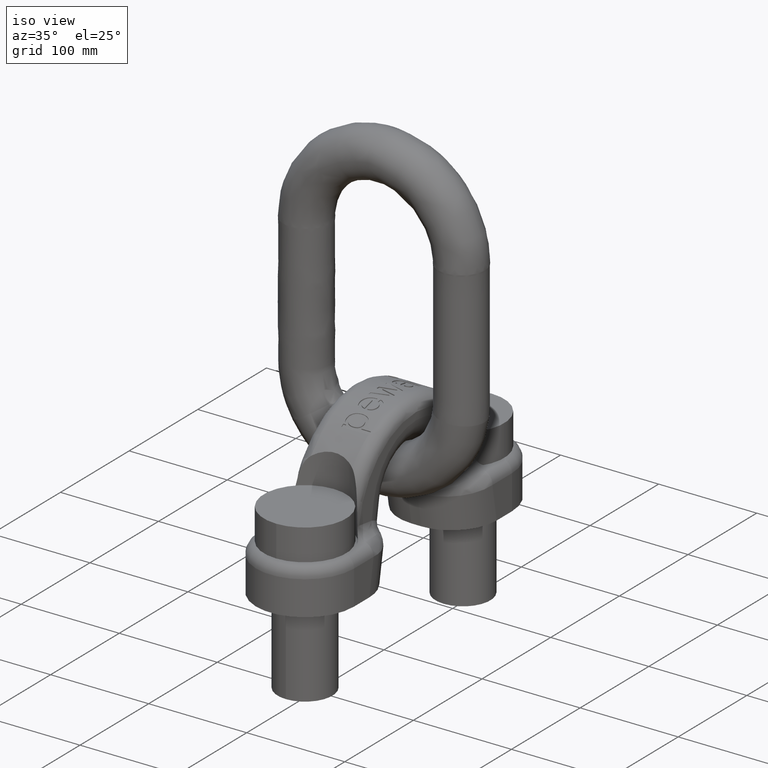
[diagram: clean part render]
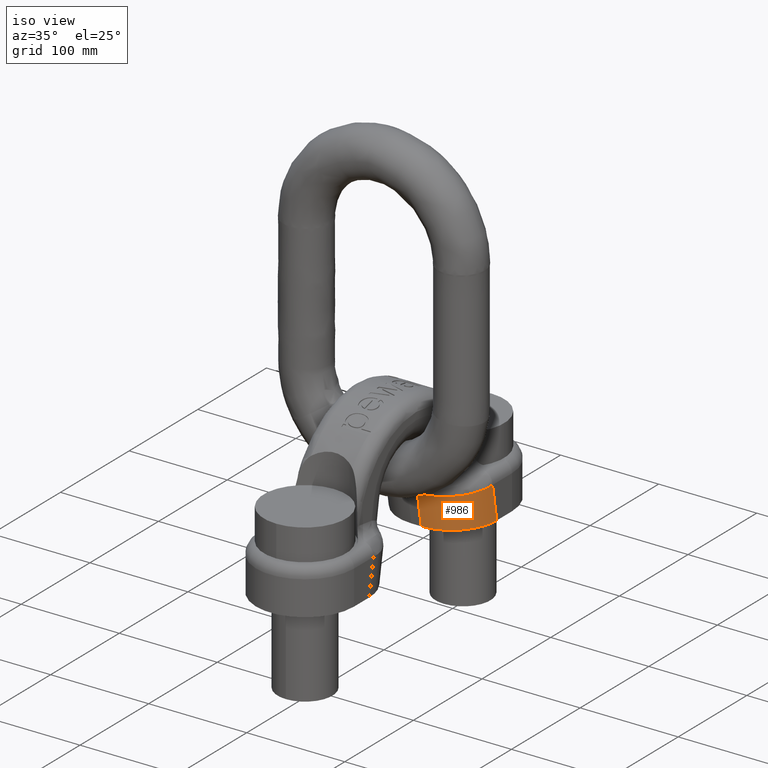
[diagram: same view with one face highlighted and labeled with its STEP entity id]
A machine part, iso view. The second image highlights one B-rep face of the part: STEP entity #986.
In plain terms, the highlighted cylindrical surface (partial cylindrical patch) has radius 45 mm, axis along (-0, 0.1736, -0.9848).
Its self-contained STEP definition (entity closure, byte-faithful):
#842=FACE_OUTER_BOUND('',#1240,.T.);
#986=ADVANCED_FACE('',(#842),#1144,.T.);
#1144=CYLINDRICAL_SURFACE('',#3564,45.);
#1240=EDGE_LOOP('',(#2097,#2098,#2099,#2100,#2101,#2102));
#1669=LINE('',#5057,#1787);
#1671=LINE('',#5063,#1789);
#1672=LINE('',#5067,#1790);
#1787=VECTOR('',#3840,1.);
#1789=VECTOR('',#3846,1.);
#1790=VECTOR('',#3849,1.);
#1943=ELLIPSE('',#3561,45.3746440348898,45.);
#1944=ELLIPSE('',#3563,45.6941975348585,45.);
#2097=ORIENTED_EDGE('',*,*,#3155,.F.);
#2098=ORIENTED_EDGE('',*,*,#3157,.T.);
#2099=ORIENTED_EDGE('',*,*,#3158,.T.);
#2100=ORIENTED_EDGE('',*,*,#3159,.F.);
#2101=ORIENTED_EDGE('',*,*,#3160,.F.);
#2102=ORIENTED_EDGE('',*,*,#3161,.F.);
#2877=VERTEX_POINT('',#5056);
#2878=VERTEX_POINT('',#5058);
#2879=VERTEX_POINT('',#5062);
#2880=VERTEX_POINT('',#5064);
#2881=VERTEX_POINT('',#5066);
#2882=VERTEX_POINT('',#5068);
#3155=EDGE_CURVE('',#2877,#2878,#1669,.T.);
#3157=EDGE_CURVE('',#2877,#2879,#1943,.T.);
#3158=EDGE_CURVE('',#2879,#2880,#1671,.T.);
#3159=EDGE_CURVE('',#2881,#2880,#3454,.T.);
#3160=EDGE_CURVE('',#2882,#2881,#1672,.T.);
#3161=EDGE_CURVE('',#2878,#2882,#1944,.T.);
#3454=CIRCLE('',#3562,45.);
#3561=AXIS2_PLACEMENT_3D('',#5061,#3844,#3845);
#3562=AXIS2_PLACEMENT_3D('',#5065,#3847,#3848);
#3563=AXIS2_PLACEMENT_3D('',#5069,#3850,#3851);
#3564=AXIS2_PLACEMENT_3D('',#5070,#3852,#3853);
#3840=DIRECTION('',(-5.23880991929418E-18,0.17364817766693,-0.984807753012208));
#3844=DIRECTION('',(-1.38548126092606E-18,0.0459238452736049,-0.998944943645688));
#3845=DIRECTION('',(-1.91155601644272E-17,0.998944943645688,0.0459238452736049));
#3846=DIRECTION('',(5.23880991929418E-18,-0.17364817766693,0.984807753012208));
#3847=DIRECTION('',(0.,-0.17364817766693,0.984807753012208));
#3848=DIRECTION('',(0.,-0.984807753012208,-0.17364817766693));
#3849=DIRECTION('',(5.23880991929418E-18,-0.17364817766693,0.984807753012208));
#3850=DIRECTION('',(0.,0.,-1.));
#3851=DIRECTION('',(-3.01691039300314E-17,1.,0.));
#3852=DIRECTION('',(-5.23880991929418E-18,0.17364817766693,-0.984807753012208));
#3853=DIRECTION('',(0.,0.984807753012208,0.17364817766693));
#5056=CARTESIAN_POINT('',(50.,86.657730080457,35.));
#5057=CARTESIAN_POINT('',(50.,91.4513257559441,7.81416799501185));
#5058=CARTESIAN_POINT('',(50.,92.8291744052532,0.));
#5061=CARTESIAN_POINT('',(5.,86.657730080457,35.));
#5062=CARTESIAN_POINT('',(6.28571428571428,41.3494633522309,32.9170725633301));
#5063=CARTESIAN_POINT('',(6.28571428571428,47.1530688690607,0.00319010749975923));
#5064=CARTESIAN_POINT('',(6.28571428571426,35.4711711071055,66.2545245035092));
#5065=CARTESIAN_POINT('',(5.,79.7694279939889,74.0655023910213));
#5066=CARTESIAN_POINT('',(5.,35.4530791084395,66.2513343960095));
#5067=CARTESIAN_POINT('',(5.,35.4530791084395,66.2513343960095));
#5068=CARTESIAN_POINT('',(5.,47.1349768703947,-5.19120761600172E-15));
#5069=CARTESIAN_POINT('',(5.,92.8291744052532,0.));
#5070=CARTESIAN_POINT('',(5.,91.4513257559441,7.81416799501185));